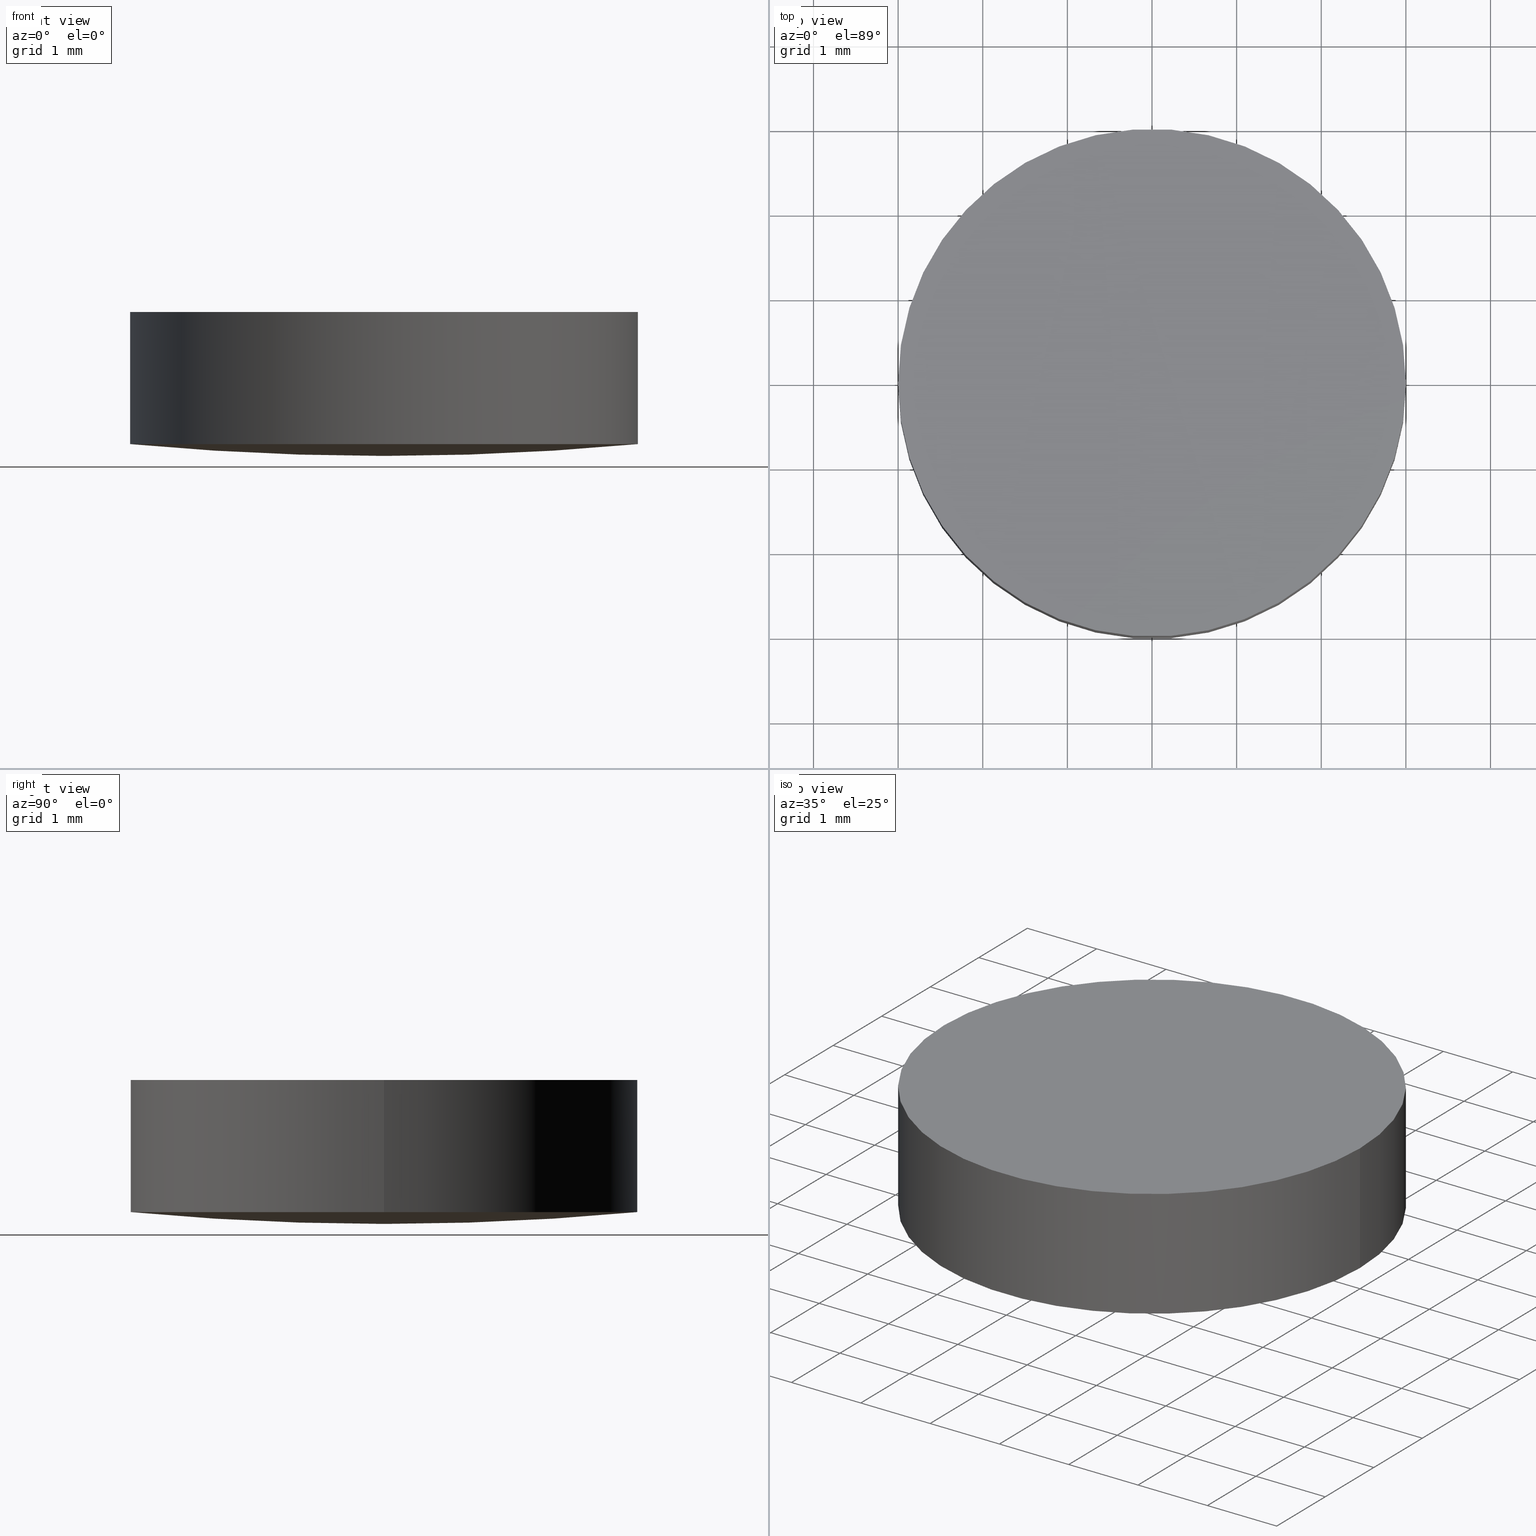
[diagram: canonical four-view strip — front | top / right | iso, engineering-drawing reading convention]
A machine part, canonical four-view strip (front | top / right | iso — engineering-drawing reading convention). The complete STEP part file that produces these views, byte-faithful:
ISO-10303-21;
HEADER;
FILE_DESCRIPTION (( 'STEP AP203' ),
    '1' );
FILE_NAME ('100566.STEP',
    '2024-05-09T06:49:38',
    ( '' ),
    ( '' ),
    'SwSTEP 2.0',
    'SolidWorks 2020',
    '' );
FILE_SCHEMA (( 'CONFIG_CONTROL_DESIGN' ));
ENDSEC;

DATA;
#1 = AXIS2_PLACEMENT_3D ( 'NONE', #162, #22, #89 ) ;
#2 = CARTESIAN_POINT ( 'NONE',  ( 0.000000000000000000, 0.000000000000000000, -1.559999999999999609 ) ) ;
#3 = CARTESIAN_POINT ( 'NONE',  ( 0.000000000000000000, 0.000000000000000000, 30.79999723759149433 ) ) ;
#4 = ADVANCED_FACE ( 'NONE', ( #134 ), #178, .T. ) ;
#5 = CARTESIAN_POINT ( 'NONE',  ( 0.000000000000000000, 0.000000000000000000, -1.699999999999999956 ) ) ;
#6 = VERTEX_POINT ( 'NONE', #5 ) ;
#7 = VERTEX_POINT ( 'NONE', #121 ) ;
#8 = APPROVAL_ROLE ( '' ) ;
#9 = AXIS2_PLACEMENT_3D ( 'NONE', #137, #128, #10 ) ;
#10 = DIRECTION ( 'NONE',  ( 1.000000000000000000, 0.000000000000000000, 0.000000000000000000 ) ) ;
#11 = APPROVAL ( #151, 'δָ��' ) ;
#12 = ORIENTED_EDGE ( 'NONE', *, *, #81, .F. ) ;
#13 = CC_DESIGN_DATE_AND_TIME_ASSIGNMENT ( #126, #140, ( #27 ) ) ;
#14 = APPLICATION_PROTOCOL_DEFINITION ( 'international standard', 'config_control_design', 1994, #198 ) ;
#15 = DESIGN_CONTEXT ( 'detailed design', #198, 'design' ) ;
#16 = LOCAL_TIME ( 14, 49, 38.00000000000000000, #150 ) ;
#17 = TOROIDAL_SURFACE ( 'NONE', #35, -0.01339987108760687037, 32.50000000000000000 ) ;
#18 = CARTESIAN_POINT ( 'NONE',  ( -3.000000000000000000, 0.000000000000000000, 4.336808689942017736E-16 ) ) ;
#19 = EDGE_CURVE ( 'NONE', #196, #116, #84, .T. ) ;
#20 = PLANE ( 'NONE',  #58 ) ;
#21 = APPROVAL_PERSON_ORGANIZATION ( #163, #131, #201 ) ;
#22 = DIRECTION ( 'NONE',  ( 0.000000000000000000, -1.000000000000000000, 0.000000000000000000 ) ) ;
#23 = ORIENTED_EDGE ( 'NONE', *, *, #174, .T. ) ;
#24 = DATE_AND_TIME ( #165, #173 ) ;
#25 = PERSON_AND_ORGANIZATION_ROLE ( 'design_supplier' ) ;
#26 = PERSON_AND_ORGANIZATION_ROLE ( 'creator' ) ;
#27 = PRODUCT_DEFINITION ( 'δ֪', '', #190, #15 ) ;
#28 = CALENDAR_DATE ( 2024, 9, 5 ) ;
#29 = CIRCLE ( 'NONE', #141, 3.000000000000000000 ) ;
#30 = VECTOR ( 'NONE', #86, 1000.000000000000000 ) ;
#31 = ORIENTED_EDGE ( 'NONE', *, *, #81, .T. ) ;
#32 = PRODUCT ( '100566', '100566', '', ( #183 ) ) ;
#33 = EDGE_LOOP ( 'NONE', ( #197, #31, #98, #71 ) ) ;
#34 = DIRECTION ( 'NONE',  ( -0.000000000000000000, -0.000000000000000000, -1.000000000000000000 ) ) ;
#35 = AXIS2_PLACEMENT_3D ( 'NONE', #78, #47, #167 ) ;
#36 = DIRECTION ( 'NONE',  ( -0.000000000000000000, -0.000000000000000000, -1.000000000000000000 ) ) ;
#37 = DIRECTION ( 'NONE',  ( -1.000000000000000000, 0.000000000000000000, 0.000000000000000000 ) ) ;
#38 = ORIENTED_EDGE ( 'NONE', *, *, #65, .T. ) ;
#39 = CARTESIAN_POINT ( 'NONE',  ( 0.000000000000000000, 0.000000000000000000, -1.699999999999999956 ) ) ;
#40 = AXIS2_PLACEMENT_3D ( 'NONE', #39, #106, #37 ) ;
#41 = PERSON_AND_ORGANIZATION_ROLE ( 'design_owner' ) ;
#42 = APPROVAL_STATUS ( 'not_yet_approved' ) ;
#43 = EDGE_CURVE ( 'NONE', #7, #6, #67, .T. ) ;
#44 = SECURITY_CLASSIFICATION_LEVEL ( 'unclassified' ) ;
#45 = APPLICATION_CONTEXT ( 'configuration controlled 3d designs of mechanical parts and assemblies' ) ;
#46 = PERSON_AND_ORGANIZATION_ROLE ( 'classification_officer' ) ;
#47 = DIRECTION ( 'NONE',  ( -0.000000000000000000, -0.000000000000000000, -1.000000000000000000 ) ) ;
#48 = DATE_TIME_ROLE ( 'classification_date' ) ;
#49 = AXIS2_PLACEMENT_3D ( 'NONE', #2, #36, #104 ) ;
#50 = ORIENTED_EDGE ( 'NONE', *, *, #43, .T. ) ;
#51 = CC_DESIGN_DATE_AND_TIME_ASSIGNMENT ( #94, #48, ( #117 ) ) ;
#52 = LOCAL_TIME ( 14, 49, 38.00000000000000000, #113 ) ;
#53 = CC_DESIGN_PERSON_AND_ORGANIZATION_ASSIGNMENT ( #109, #79, ( #27 ) ) ;
#54 = DIRECTION ( 'NONE',  ( -1.000000000000000000, 0.000000000000000000, 0.000000000000000000 ) ) ;
#55 = CARTESIAN_POINT ( 'NONE',  ( 0.000000000000000000, 0.000000000000000000, -1.699999999999999956 ) ) ;
#56 = CARTESIAN_POINT ( 'NONE',  ( 3.000000000000000000, 3.673940397442059868E-16, -1.699999999999999956 ) ) ;
#57 = EDGE_LOOP ( 'NONE', ( #12, #193, #122, #100 ) ) ;
#58 = AXIS2_PLACEMENT_3D ( 'NONE', #68, #144, #119 ) ;
#59 = CC_DESIGN_PERSON_AND_ORGANIZATION_ASSIGNMENT ( #188, #25, ( #190 ) ) ;
#60 = PERSON_AND_ORGANIZATION ( #172, #169 ) ;
#61 = CALENDAR_DATE ( 2024, 9, 5 ) ;
#62 = DATE_AND_TIME ( #61, #16 ) ;
#63 = UNCERTAINTY_MEASURE_WITH_UNIT (LENGTH_MEASURE( 1.000000000000000082E-05 ), #153, 'distance_accuracy_value', 'NONE');
#64 = CARTESIAN_POINT ( 'NONE',  ( 0.000000000000000000, 0.000000000000000000, 4.336808689942017736E-16 ) ) ;
#65 = EDGE_CURVE ( 'NONE', #90, #6, #182, .T. ) ;
#66 = AXIS2_PLACEMENT_3D ( 'NONE', #3, #69, #132 ) ;
#67 = CIRCLE ( 'NONE', #1, 32.50000000000000000 ) ;
#68 = CARTESIAN_POINT ( 'NONE',  ( 0.000000000000000000, 0.000000000000000000, 1.836970198721030181E-16 ) ) ;
#69 = DIRECTION ( 'NONE',  ( -0.000000000000000000, -0.000000000000000000, -1.000000000000000000 ) ) ;
#70 = CC_DESIGN_APPROVAL ( #11, ( #117 ) ) ;
#71 = ORIENTED_EDGE ( 'NONE', *, *, #105, .F. ) ;
#72 = CARTESIAN_POINT ( 'NONE',  ( -0.01339987108760687037, -1.641010923642491594E-18, 30.79999723759149433 ) ) ;
#73 = CARTESIAN_POINT ( 'NONE',  ( 0.000000000000000000, 0.000000000000000000, 4.336808689942017736E-16 ) ) ;
#74 = APPROVAL_DATE_TIME ( #24, #11 ) ;
#75 = AXIS2_PLACEMENT_3D ( 'NONE', #55, #175, #54 ) ;
#76 = COORDINATED_UNIVERSAL_TIME_OFFSET ( 8, 0, .AHEAD. ) ;
#77 = PERSON_AND_ORGANIZATION ( #172, #169 ) ;
#78 = CARTESIAN_POINT ( 'NONE',  ( 0.000000000000000000, 0.000000000000000000, 30.79999723759149433 ) ) ;
#79 = PERSON_AND_ORGANIZATION_ROLE ( 'creator' ) ;
#80 = APPROVAL_PERSON_ORGANIZATION ( #60, #11, #114 ) ;
#81 = EDGE_CURVE ( 'NONE', #196, #90, #148, .T. ) ;
#82 = PRODUCT_DEFINITION_SHAPE ( 'NONE', 'NONE',  #27 ) ;
#83 = CC_DESIGN_APPROVAL ( #157, ( #27 ) ) ;
#84 = CIRCLE ( 'NONE', #155, 3.000000000000000000 ) ;
#85 = CYLINDRICAL_SURFACE ( 'NONE', #75, 3.000000000000000000 ) ;
#86 = DIRECTION ( 'NONE',  ( -0.000000000000000000, -0.000000000000000000, -1.000000000000000000 ) ) ;
#87 = ORIENTED_EDGE ( 'NONE', *, *, #88, .T. ) ;
#88 = EDGE_CURVE ( 'NONE', #90, #7, #142, .T. ) ;
#89 = DIRECTION ( 'NONE',  ( 0.000000000000000000, 0.000000000000000000, -1.000000000000000000 ) ) ;
#90 = VERTEX_POINT ( 'NONE', #176 ) ;
#91 = DIRECTION ( 'NONE',  ( -1.000000000000000000, 0.000000000000000000, 0.000000000000000000 ) ) ;
#92 = COORDINATED_UNIVERSAL_TIME_OFFSET ( 8, 0, .AHEAD. ) ;
#93 = DATE_AND_TIME ( #112, #136 ) ;
#94 = DATE_AND_TIME ( #28, #52 ) ;
#95 =( NAMED_UNIT ( * ) SI_UNIT ( $, .STERADIAN. ) SOLID_ANGLE_UNIT ( ) );
#96 = APPROVAL_STATUS ( 'not_yet_approved' ) ;
#97 = APPROVAL_PERSON_ORGANIZATION ( #184, #157, #8 ) ;
#98 = ORIENTED_EDGE ( 'NONE', *, *, #174, .F. ) ;
#99 = CC_DESIGN_PERSON_AND_ORGANIZATION_ASSIGNMENT ( #186, #26, ( #190 ) ) ;
#100 = ORIENTED_EDGE ( 'NONE', *, *, #88, .F. ) ;
#101 = VECTOR ( 'NONE', #34, 1000.000000000000000 ) ;
#102 = ADVANCED_BREP_SHAPE_REPRESENTATION ( '100566', ( #110, #9 ), #181 ) ;
#103 = DIRECTION ( 'NONE',  ( -0.000000000000000000, -0.000000000000000000, -1.000000000000000000 ) ) ;
#104 = DIRECTION ( 'NONE',  ( -1.000000000000000000, 0.000000000000000000, 0.000000000000000000 ) ) ;
#105 = EDGE_CURVE ( 'NONE', #116, #7, #146, .T. ) ;
#106 = DIRECTION ( 'NONE',  ( -0.000000000000000000, -0.000000000000000000, -1.000000000000000000 ) ) ;
#107 = EDGE_LOOP ( 'NONE', ( #23, #38, #180 ) ) ;
#108 = DIRECTION ( 'NONE',  ( -0.000000000000000000, -0.000000000000000000, -1.000000000000000000 ) ) ;
#109 = PERSON_AND_ORGANIZATION ( #172, #169 ) ;
#110 = MANIFOLD_SOLID_BREP ( '��ת1', #170 ) ;
#111 = PRODUCT_RELATED_PRODUCT_CATEGORY ( 'detail', '', ( #32 ) ) ;
#112 = CALENDAR_DATE ( 2024, 9, 5 ) ;
#113 = COORDINATED_UNIVERSAL_TIME_OFFSET ( 8, 0, .AHEAD. ) ;
#114 = APPROVAL_ROLE ( '' ) ;
#115 = DIRECTION ( 'NONE',  ( -0.000000000000000000, -0.000000000000000000, -1.000000000000000000 ) ) ;
#116 = VERTEX_POINT ( 'NONE', #18 ) ;
#117 = SECURITY_CLASSIFICATION ( '', '', #44 ) ;
#118 = FACE_OUTER_BOUND ( 'NONE', #33, .T. ) ;
#119 = DIRECTION ( 'NONE',  ( 1.000000000000000000, 0.000000000000000000, -0.000000000000000000 ) ) ;
#120 = ADVANCED_FACE ( 'NONE', ( #118 ), #85, .T. ) ;
#121 = CARTESIAN_POINT ( 'NONE',  ( -2.999999999999999112, 0.000000000000000000, -1.559999999999997611 ) ) ;
#122 = ORIENTED_EDGE ( 'NONE', *, *, #105, .T. ) ;
#123 = AXIS2_PLACEMENT_3D ( 'NONE', #72, #133, #195 ) ;
#124 = SHAPE_DEFINITION_REPRESENTATION ( #82, #102 ) ;
#125 = COORDINATED_UNIVERSAL_TIME_OFFSET ( 8, 0, .AHEAD. ) ;
#126 = DATE_AND_TIME ( #164, #159 ) ;
#127 = ADVANCED_FACE ( 'NONE', ( #130 ), #149, .T. ) ;
#128 = DIRECTION ( 'NONE',  ( 0.000000000000000000, 0.000000000000000000, 1.000000000000000000 ) ) ;
#129 = APPROVAL_DATE_TIME ( #62, #131 ) ;
#130 = FACE_OUTER_BOUND ( 'NONE', #135, .T. ) ;
#131 = APPROVAL ( #96, 'δָ��' ) ;
#132 = DIRECTION ( 'NONE',  ( -1.000000000000000000, 0.000000000000000000, 0.000000000000000000 ) ) ;
#133 = DIRECTION ( 'NONE',  ( -1.224646799147353207E-16, 1.000000000000000000, 0.000000000000000000 ) ) ;
#134 = FACE_OUTER_BOUND ( 'NONE', #57, .T. ) ;
#135 = EDGE_LOOP ( 'NONE', ( #171, #87, #50 ) ) ;
#136 = LOCAL_TIME ( 14, 49, 38.00000000000000000, #76 ) ;
#137 = CARTESIAN_POINT ( 'NONE',  ( 0.000000000000000000, 0.000000000000000000, 0.000000000000000000 ) ) ;
#138 = ADVANCED_FACE ( 'NONE', ( #143 ), #20, .T. ) ;
#139 = APPROVAL_DATE_TIME ( #93, #157 ) ;
#140 = DATE_TIME_ROLE ( 'creation_date' ) ;
#141 = AXIS2_PLACEMENT_3D ( 'NONE', #64, #115, #152 ) ;
#142 = CIRCLE ( 'NONE', #154, 3.000000000000000000 ) ;
#143 = FACE_OUTER_BOUND ( 'NONE', #158, .T. ) ;
#144 = DIRECTION ( 'NONE',  ( 0.000000000000000000, 0.000000000000000000, 1.000000000000000000 ) ) ;
#145 = ORIENTED_EDGE ( 'NONE', *, *, #191, .F. ) ;
#146 = LINE ( 'NONE', #161, #101 ) ;
#147 = ORIENTED_EDGE ( 'NONE', *, *, #19, .F. ) ;
#148 = LINE ( 'NONE', #56, #30 ) ;
#149 = TOROIDAL_SURFACE ( 'NONE', #66, -0.01339987108760687037, 32.50000000000000000 ) ;
#150 = COORDINATED_UNIVERSAL_TIME_OFFSET ( 8, 0, .AHEAD. ) ;
#151 = APPROVAL_STATUS ( 'not_yet_approved' ) ;
#152 = DIRECTION ( 'NONE',  ( -1.000000000000000000, 0.000000000000000000, 0.000000000000000000 ) ) ;
#153 =( LENGTH_UNIT ( ) NAMED_UNIT ( * ) SI_UNIT ( .MILLI., .METRE. ) );
#154 = AXIS2_PLACEMENT_3D ( 'NONE', #192, #103, #160 ) ;
#155 = AXIS2_PLACEMENT_3D ( 'NONE', #73, #108, #91 ) ;
#156 = CC_DESIGN_APPROVAL ( #131, ( #190 ) ) ;
#157 = APPROVAL ( #42, 'δָ��' ) ;
#158 = EDGE_LOOP ( 'NONE', ( #145, #147 ) ) ;
#159 = LOCAL_TIME ( 14, 49, 38.00000000000000000, #125 ) ;
#160 = DIRECTION ( 'NONE',  ( -1.000000000000000000, 0.000000000000000000, 0.000000000000000000 ) ) ;
#161 = CARTESIAN_POINT ( 'NONE',  ( -3.000000000000000000, 0.000000000000000000, -1.699999999999999956 ) ) ;
#162 = CARTESIAN_POINT ( 'NONE',  ( 0.01339987108760687037, 0.000000000000000000, 30.79999723759149433 ) ) ;
#163 = PERSON_AND_ORGANIZATION ( #172, #169 ) ;
#164 = CALENDAR_DATE ( 2024, 9, 5 ) ;
#165 = CALENDAR_DATE ( 2024, 9, 5 ) ;
#166 = APPLICATION_PROTOCOL_DEFINITION ( 'international standard', 'config_control_design', 1994, #45 ) ;
#167 = DIRECTION ( 'NONE',  ( -1.000000000000000000, 0.000000000000000000, 0.000000000000000000 ) ) ;
#168 =( NAMED_UNIT ( * ) PLANE_ANGLE_UNIT ( ) SI_UNIT ( $, .RADIAN. ) );
#169 = ORGANIZATION ( 'δָ��', 'δָ��', '' ) ;
#170 = CLOSED_SHELL ( 'NONE', ( #120, #179, #127, #138, #4 ) ) ;
#171 = ORIENTED_EDGE ( 'NONE', *, *, #65, .F. ) ;
#172 = PERSON ( 'δָ��', 'δָ��', 'δָ��', ('δָ��'), ('δָ��'), ('δָ��') ) ;
#173 = LOCAL_TIME ( 14, 49, 38.00000000000000000, #92 ) ;
#174 = EDGE_CURVE ( 'NONE', #7, #90, #199, .T. ) ;
#175 = DIRECTION ( 'NONE',  ( -0.000000000000000000, -0.000000000000000000, -1.000000000000000000 ) ) ;
#176 = CARTESIAN_POINT ( 'NONE',  ( 2.999999999999999112, 3.673940397442059375E-16, -1.559999999999997611 ) ) ;
#177 = CC_DESIGN_PERSON_AND_ORGANIZATION_ASSIGNMENT ( #200, #46, ( #117 ) ) ;
#178 = CYLINDRICAL_SURFACE ( 'NONE', #40, 3.000000000000000000 ) ;
#179 = ADVANCED_FACE ( 'NONE', ( #187 ), #17, .T. ) ;
#180 = ORIENTED_EDGE ( 'NONE', *, *, #43, .F. ) ;
#181 =( GEOMETRIC_REPRESENTATION_CONTEXT ( 3 ) GLOBAL_UNCERTAINTY_ASSIGNED_CONTEXT ( ( #63 ) ) GLOBAL_UNIT_ASSIGNED_CONTEXT ( ( #153, #168, #95 ) ) REPRESENTATION_CONTEXT ( 'NONE', 'WORKASPACE' ) );
#182 = CIRCLE ( 'NONE', #123, 32.50000000000000000 ) ;
#183 = MECHANICAL_CONTEXT ( 'NONE', #45, 'mechanical' ) ;
#184 = PERSON_AND_ORGANIZATION ( #172, #169 ) ;
#185 = CC_DESIGN_SECURITY_CLASSIFICATION ( #117, ( #190 ) ) ;
#186 = PERSON_AND_ORGANIZATION ( #172, #169 ) ;
#187 = FACE_OUTER_BOUND ( 'NONE', #107, .T. ) ;
#188 = PERSON_AND_ORGANIZATION ( #172, #169 ) ;
#189 = CARTESIAN_POINT ( 'NONE',  ( 3.000000000000000000, 3.673940397442059868E-16, 4.336808689942017736E-16 ) ) ;
#190 = PRODUCT_DEFINITION_FORMATION_WITH_SPECIFIED_SOURCE ( '�κ�', '', #32, .NOT_KNOWN. ) ;
#191 = EDGE_CURVE ( 'NONE', #116, #196, #29, .T. ) ;
#192 = CARTESIAN_POINT ( 'NONE',  ( 0.000000000000000000, 0.000000000000000000, -1.559999999999999609 ) ) ;
#193 = ORIENTED_EDGE ( 'NONE', *, *, #19, .T. ) ;
#194 = CC_DESIGN_PERSON_AND_ORGANIZATION_ASSIGNMENT ( #77, #41, ( #32 ) ) ;
#195 = DIRECTION ( 'NONE',  ( -1.000000000000000000, -1.224646799147353454E-16, 0.000000000000000000 ) ) ;
#196 = VERTEX_POINT ( 'NONE', #189 ) ;
#197 = ORIENTED_EDGE ( 'NONE', *, *, #191, .T. ) ;
#198 = APPLICATION_CONTEXT ( 'configuration controlled 3d designs of mechanical parts and assemblies' ) ;
#199 = CIRCLE ( 'NONE', #49, 3.000000000000000000 ) ;
#200 = PERSON_AND_ORGANIZATION ( #172, #169 ) ;
#201 = APPROVAL_ROLE ( '' ) ;
ENDSEC;
END-ISO-10303-21;
